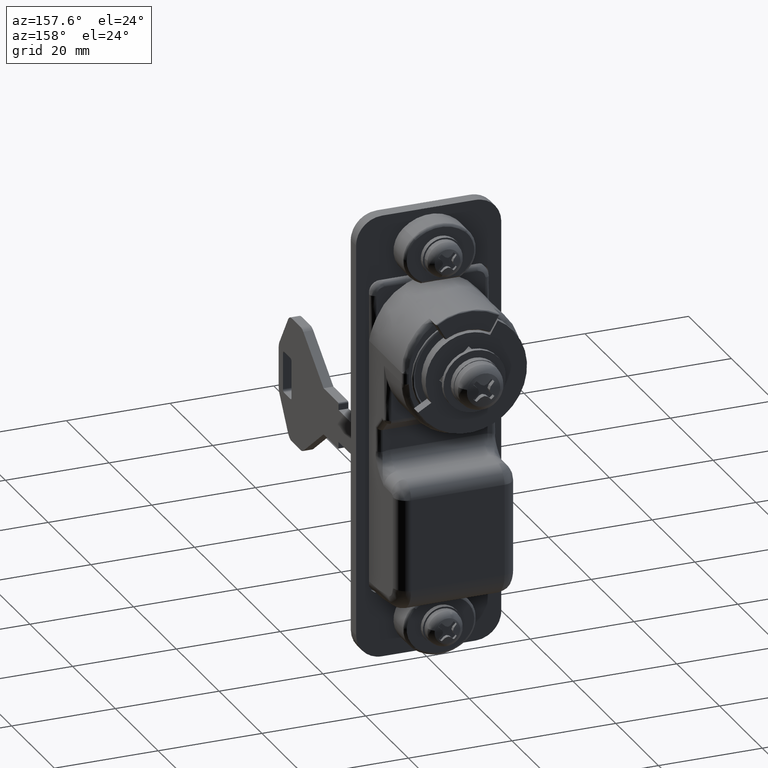
[diagram: clean part render]
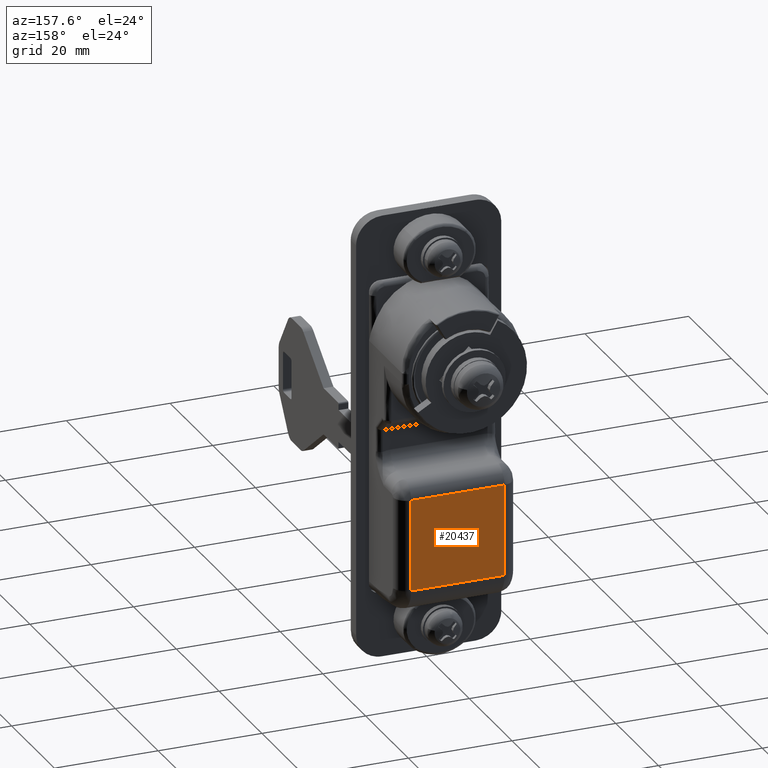
[diagram: same view with one face highlighted and labeled with its STEP entity id]
A machine part, auxiliary view. The second image highlights one B-rep face of the part: STEP entity #20437.
In plain terms, the highlighted face is a freeform B-spline surface patch.
Its self-contained STEP definition (entity closure, byte-faithful):
#18332=CARTESIAN_POINT('',(14.600000000000000,-9.000000000000119,-25.0));
#18333=VERTEX_POINT('',#18332);
#18409=CARTESIAN_POINT('',(14.600000000000000,-9.000000000000119,-42.641411796515349));
#18410=VERTEX_POINT('',#18409);
#18424=CARTESIAN_POINT('',(14.600000000000000,-9.000000000000119,-25.0));
#18425=CARTESIAN_POINT('',(14.600000000000000,-9.000000000000119,-42.641411796515349));
#18426=QUASI_UNIFORM_CURVE('',1,(#18424,#18425),.UNSPECIFIED.,.F.,.U.);
#18427=EDGE_CURVE('',#18333,#18410,#18426,.T.);
#18578=CARTESIAN_POINT('',(14.600000000000000,9.0,-25.0));
#18579=VERTEX_POINT('',#18578);
#18638=CARTESIAN_POINT('',(14.600000000000000,9.0,-42.641411796515349));
#18639=VERTEX_POINT('',#18638);
#18661=CARTESIAN_POINT('',(14.600000000000000,9.0,-42.641411796515349));
#18662=CARTESIAN_POINT('',(14.600000000000000,9.0,-25.0));
#18663=QUASI_UNIFORM_CURVE('',1,(#18661,#18662),.UNSPECIFIED.,.F.,.U.);
#18664=EDGE_CURVE('',#18639,#18579,#18663,.T.);
#18763=CARTESIAN_POINT('',(14.600000000000000,9.0,-25.0));
#18764=CARTESIAN_POINT('',(14.600000000000000,-9.000000000000119,-25.0));
#18765=QUASI_UNIFORM_CURVE('',1,(#18763,#18764),.UNSPECIFIED.,.F.,.U.);
#18766=EDGE_CURVE('',#18579,#18333,#18765,.T.);
#19183=CARTESIAN_POINT('',(14.600000000000000,-9.000000000000119,-42.641411796515349));
#19184=CARTESIAN_POINT('',(14.600000000000000,9.0,-42.641411796515349));
#19185=QUASI_UNIFORM_CURVE('',1,(#19183,#19184),.UNSPECIFIED.,.F.,.U.);
#19186=EDGE_CURVE('',#18410,#18639,#19185,.T.);
#20426=CARTESIAN_POINT('',(14.600000000000000,-9.899099965112633,-43.522599287929097));
#20427=CARTESIAN_POINT('',(14.600000000000000,-9.899099965112633,-24.118811089047639));
#20428=CARTESIAN_POINT('',(14.600000000000000,9.899100447910135,-43.522599287929097));
#20429=CARTESIAN_POINT('',(14.600000000000000,9.899100447910135,-24.118811089047639));
#20430=B_SPLINE_SURFACE_WITH_KNOTS('',1,1,((#20426,#20428),(#20427,#20429)),.UNSPECIFIED.,.F.,.F.,.U.,(2,2),(2,2),(0.0,19.403788198881472),(0.0,19.798200413022769),.UNSPECIFIED.);
#20431=ORIENTED_EDGE('',*,*,#19186,.T.);
#20432=ORIENTED_EDGE('',*,*,#18664,.T.);
#20433=ORIENTED_EDGE('',*,*,#18766,.T.);
#20434=ORIENTED_EDGE('',*,*,#18427,.T.);
#20435=EDGE_LOOP('',(#20431,#20432,#20433,#20434));
#20436=FACE_OUTER_BOUND('',#20435,.T.);
#20437=ADVANCED_FACE('',(#20436),#20430,.F.);